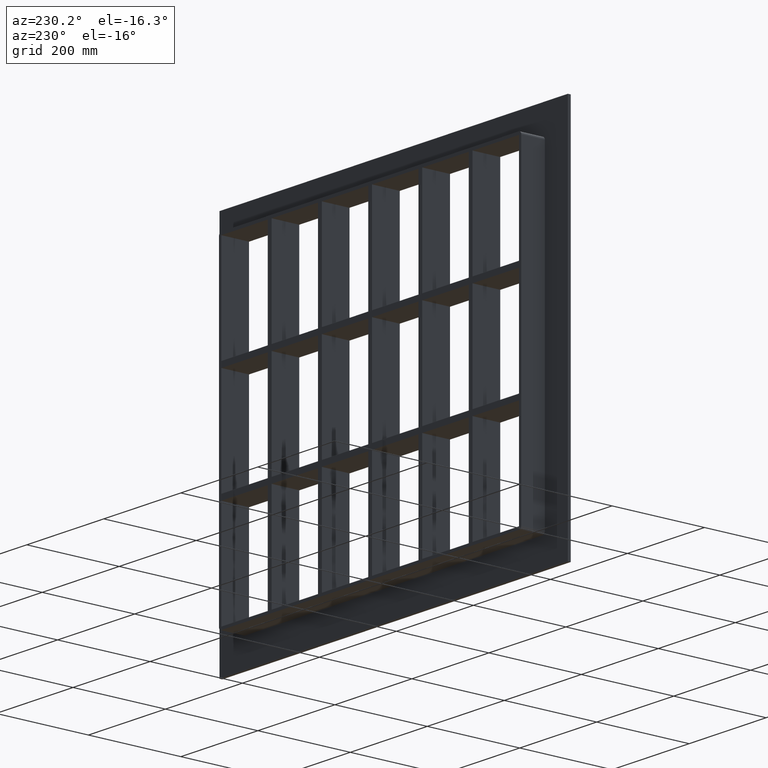
[diagram: clean part render]
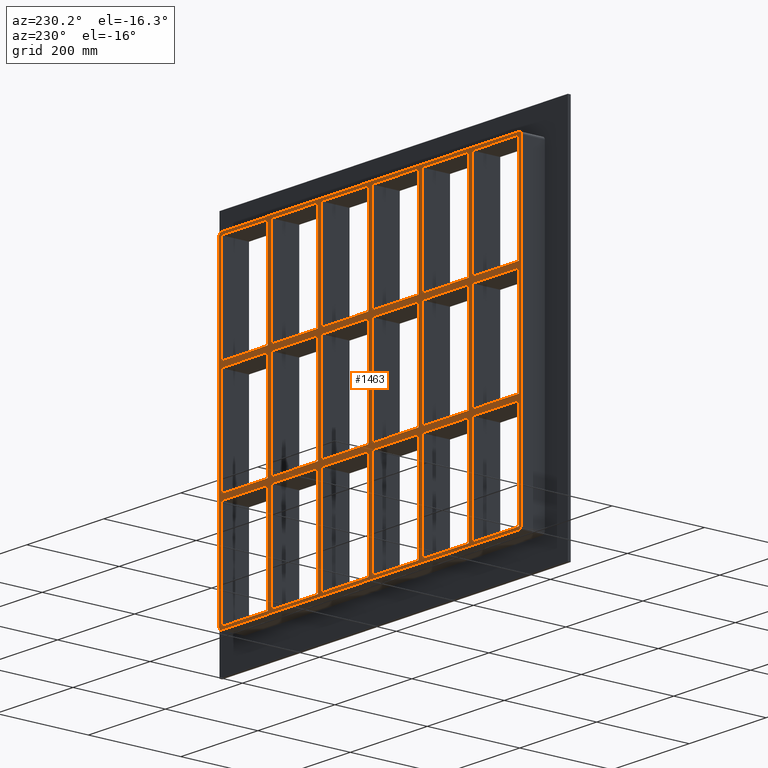
[diagram: same view with one face highlighted and labeled with its STEP entity id]
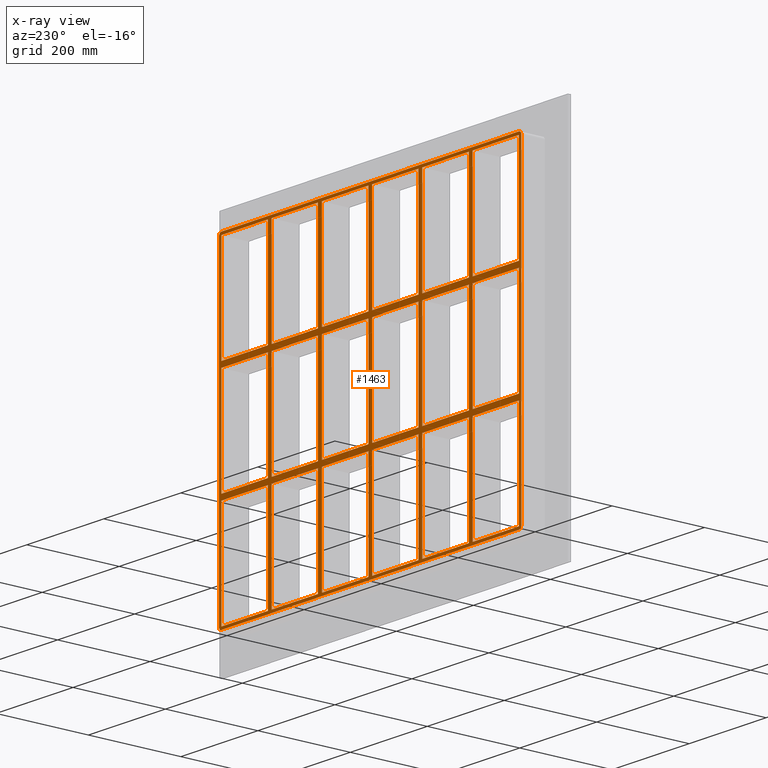
[diagram: x-ray of the same camera — body ghosted, the highlighted face saturated]
A machine part, auxiliary view. The second image highlights one B-rep face of the part: STEP entity #1463.
The next image is the same camera in x-ray: the body ghosted, the highlighted face saturated — about 0% of this face is hidden behind the body in this view.
In plain terms, the highlighted planar face has unit normal (0, 1, 0).
Its self-contained STEP definition (entity closure, byte-faithful):
#75=CARTESIAN_POINT('',(-266.00000000000142,57.0,108.99999999999068));
#76=VERTEX_POINT('',#75);
#91=CARTESIAN_POINT('',(-386.49999999999972,57.0,108.99999999999068));
#92=VERTEX_POINT('',#91);
#99=CARTESIAN_POINT('',(-266.00000000000136,57.0,108.99999999999068));
#100=DIRECTION('',(-1.0,0.0,0.0));
#101=VECTOR('',#100,120.49999999999841);
#102=LINE('',#99,#101);
#103=EDGE_CURVE('',#76,#92,#102,.T.);
#115=CARTESIAN_POINT('',(-135.50000000000148,57.0,108.99999999999068));
#116=VERTEX_POINT('',#115);
#131=CARTESIAN_POINT('',(-256.00000000000364,57.0,108.99999999999068));
#132=VERTEX_POINT('',#131);
#139=CARTESIAN_POINT('',(-135.50000000000148,57.0,108.99999999999068));
#140=DIRECTION('',(-1.0,0.0,0.0));
#141=VECTOR('',#140,120.50000000000216);
#142=LINE('',#139,#141);
#143=EDGE_CURVE('',#116,#132,#142,.T.);
#155=CARTESIAN_POINT('',(-5.000000000001421,57.0,108.99999999999068));
#156=VERTEX_POINT('',#155);
#171=CARTESIAN_POINT('',(-125.50000000000367,57.0,108.99999999999068));
#172=VERTEX_POINT('',#171);
#179=CARTESIAN_POINT('',(-5.000000000001421,57.0,108.99999999999068));
#180=DIRECTION('',(-1.0,0.0,0.0));
#181=VECTOR('',#180,120.50000000000222);
#182=LINE('',#179,#181);
#183=EDGE_CURVE('',#156,#172,#182,.T.);
#195=CARTESIAN_POINT('',(125.49999999999866,57.0,108.99999999999069));
#196=VERTEX_POINT('',#195);
#211=CARTESIAN_POINT('',(4.999999999996376,57.0,108.99999999999069));
#212=VERTEX_POINT('',#211);
#219=CARTESIAN_POINT('',(125.49999999999864,57.0,108.99999999999069));
#220=DIRECTION('',(-1.0,0.0,0.0));
#221=VECTOR('',#220,120.50000000000227);
#222=LINE('',#219,#221);
#223=EDGE_CURVE('',#196,#212,#222,.T.);
#233=CARTESIAN_POINT('',(265.99999999999642,57.0,108.99999999999069));
#234=VERTEX_POINT('',#233);
#243=CARTESIAN_POINT('',(386.49999999999636,57.0,108.99999999999069));
#244=VERTEX_POINT('',#243);
#245=CARTESIAN_POINT('',(386.49999999999636,57.0,108.99999999999069));
#246=DIRECTION('',(-1.0,0.0,0.0));
#247=VECTOR('',#246,120.49999999999994);
#248=LINE('',#245,#247);
#249=EDGE_CURVE('',#244,#234,#248,.T.);
#275=CARTESIAN_POINT('',(255.99999999999866,57.0,108.99999999999069));
#276=VERTEX_POINT('',#275);
#291=CARTESIAN_POINT('',(135.49999999999642,57.0,108.99999999999069));
#292=VERTEX_POINT('',#291);
#299=CARTESIAN_POINT('',(255.99999999999866,57.0,108.99999999999069));
#300=DIRECTION('',(-1.0,0.0,0.0));
#301=VECTOR('',#300,120.50000000000225);
#302=LINE('',#299,#301);
#303=EDGE_CURVE('',#276,#292,#302,.T.);
#313=CARTESIAN_POINT('',(-266.00000000000142,57.0,120.99999999999994));
#314=VERTEX_POINT('',#313);
#323=CARTESIAN_POINT('',(-386.49999999999977,57.0,120.99999999999994));
#324=VERTEX_POINT('',#323);
#325=CARTESIAN_POINT('',(-386.49999999999977,57.0,120.99999999999994));
#326=DIRECTION('',(1.0,0.0,0.0));
#327=VECTOR('',#326,120.49999999999841);
#328=LINE('',#325,#327);
#329=EDGE_CURVE('',#324,#314,#328,.T.);
#355=CARTESIAN_POINT('',(265.99999999999636,57.0,120.99999999999994));
#356=VERTEX_POINT('',#355);
#371=CARTESIAN_POINT('',(386.50000000000006,57.0,120.99999999999994));
#372=VERTEX_POINT('',#371);
#379=CARTESIAN_POINT('',(265.99999999999636,57.0,120.99999999999994));
#380=DIRECTION('',(1.0,0.0,0.0));
#381=VECTOR('',#380,120.50000000000364);
#382=LINE('',#379,#381);
#383=EDGE_CURVE('',#356,#372,#382,.T.);
#393=CARTESIAN_POINT('',(-135.50000000000139,57.0,120.99999999999994));
#394=VERTEX_POINT('',#393);
#403=CARTESIAN_POINT('',(-256.00000000000364,57.0,120.99999999999994));
#404=VERTEX_POINT('',#403);
#405=CARTESIAN_POINT('',(-256.00000000000364,57.0,120.99999999999994));
#406=DIRECTION('',(1.0,0.0,0.0));
#407=VECTOR('',#406,120.50000000000225);
#408=LINE('',#405,#407);
#409=EDGE_CURVE('',#404,#394,#408,.T.);
#433=CARTESIAN_POINT('',(-5.000000000001421,57.0,120.99999999999994));
#434=VERTEX_POINT('',#433);
#443=CARTESIAN_POINT('',(-125.50000000000364,57.0,120.99999999999994));
#444=VERTEX_POINT('',#443);
#445=CARTESIAN_POINT('',(-125.50000000000364,57.0,120.99999999999994));
#446=DIRECTION('',(1.0,0.0,0.0));
#447=VECTOR('',#446,120.50000000000222);
#448=LINE('',#445,#447);
#449=EDGE_CURVE('',#444,#434,#448,.T.);
#473=CARTESIAN_POINT('',(125.49999999999862,57.0,120.99999999999994));
#474=VERTEX_POINT('',#473);
#483=CARTESIAN_POINT('',(4.999999999996376,57.0,120.99999999999994));
#484=VERTEX_POINT('',#483);
#485=CARTESIAN_POINT('',(4.999999999996362,57.0,120.99999999999994));
#486=DIRECTION('',(1.0,0.0,0.0));
#487=VECTOR('',#486,120.50000000000227);
#488=LINE('',#485,#487);
#489=EDGE_CURVE('',#484,#474,#488,.T.);
#513=CARTESIAN_POINT('',(255.99999999999866,57.0,120.99999999999994));
#514=VERTEX_POINT('',#513);
#523=CARTESIAN_POINT('',(135.49999999999642,57.0,120.99999999999994));
#524=VERTEX_POINT('',#523);
#525=CARTESIAN_POINT('',(135.49999999999636,57.0,120.99999999999994));
#526=DIRECTION('',(1.0,0.0,0.0));
#527=VECTOR('',#526,120.50000000000227);
#528=LINE('',#525,#527);
#529=EDGE_CURVE('',#524,#514,#528,.T.);
#554=CARTESIAN_POINT('',(-386.50000000000006,57.0,339.00000000000006));
#555=VERTEX_POINT('',#554);
#556=CARTESIAN_POINT('',(-386.50000000000006,57.0,339.00000000000011));
#557=DIRECTION('',(0.0,0.0,-1.0));
#558=VECTOR('',#557,218.00000000000014);
#559=LINE('',#556,#558);
#560=EDGE_CURVE('',#555,#324,#559,.T.);
#585=CARTESIAN_POINT('',(386.50000000000006,57.0,-109.00000000000006));
#586=VERTEX_POINT('',#585);
#587=CARTESIAN_POINT('',(386.50000000000006,57.0,-109.00000000000009));
#588=DIRECTION('',(0.0,0.0,1.0));
#589=VECTOR('',#588,217.99999999999079);
#590=LINE('',#587,#589);
#591=EDGE_CURVE('',#586,#244,#590,.T.);
#624=CARTESIAN_POINT('',(386.50000000000006,57.0,339.00000000000006));
#625=VERTEX_POINT('',#624);
#632=CARTESIAN_POINT('',(386.50000000000006,57.0,120.99999999999994));
#633=DIRECTION('',(0.0,0.0,1.0));
#634=VECTOR('',#633,218.00000000000011);
#635=LINE('',#632,#634);
#636=EDGE_CURVE('',#372,#625,#635,.T.);
#655=CARTESIAN_POINT('',(255.99999999999864,57.0,339.00000000000006));
#656=VERTEX_POINT('',#655);
#663=CARTESIAN_POINT('',(255.99999999999864,57.0,120.99999999999994));
#664=DIRECTION('',(0.0,0.0,1.0));
#665=VECTOR('',#664,218.00000000000011);
#666=LINE('',#663,#665);
#667=EDGE_CURVE('',#514,#656,#666,.T.);
#678=CARTESIAN_POINT('',(265.99999999999642,57.0,339.00000000000006));
#679=VERTEX_POINT('',#678);
#680=CARTESIAN_POINT('',(265.99999999999642,57.0,339.00000000000006));
#681=DIRECTION('',(0.0,0.0,-1.0));
#682=VECTOR('',#681,218.00000000000011);
#683=LINE('',#680,#682);
#684=EDGE_CURVE('',#679,#356,#683,.T.);
#717=CARTESIAN_POINT('',(125.49999999999862,57.0,339.00000000000006));
#718=VERTEX_POINT('',#717);
#725=CARTESIAN_POINT('',(125.49999999999865,57.0,120.99999999999994));
#726=DIRECTION('',(0.0,0.0,1.0));
#727=VECTOR('',#726,218.00000000000011);
#728=LINE('',#725,#727);
#729=EDGE_CURVE('',#474,#718,#728,.T.);
#740=CARTESIAN_POINT('',(135.49999999999642,57.0,339.00000000000006));
#741=VERTEX_POINT('',#740);
#742=CARTESIAN_POINT('',(135.49999999999642,57.0,339.00000000000006));
#743=DIRECTION('',(0.0,0.0,-1.0));
#744=VECTOR('',#743,218.00000000000011);
#745=LINE('',#742,#744);
#746=EDGE_CURVE('',#741,#524,#745,.T.);
#779=CARTESIAN_POINT('',(-5.000000000001421,57.0,339.00000000000006));
#780=VERTEX_POINT('',#779);
#787=CARTESIAN_POINT('',(-5.000000000001398,57.0,120.99999999999994));
#788=DIRECTION('',(0.0,0.0,1.0));
#789=VECTOR('',#788,218.00000000000011);
#790=LINE('',#787,#789);
#791=EDGE_CURVE('',#434,#780,#790,.T.);
#802=CARTESIAN_POINT('',(4.999999999996376,57.0,339.00000000000006));
#803=VERTEX_POINT('',#802);
#804=CARTESIAN_POINT('',(4.999999999996376,57.0,339.00000000000006));
#805=DIRECTION('',(0.0,0.0,-1.0));
#806=VECTOR('',#805,218.00000000000011);
#807=LINE('',#804,#806);
#808=EDGE_CURVE('',#803,#484,#807,.T.);
#841=CARTESIAN_POINT('',(-135.50000000000142,57.0,339.00000000000006));
#842=VERTEX_POINT('',#841);
#849=CARTESIAN_POINT('',(-135.50000000000142,57.0,120.99999999999994));
#850=DIRECTION('',(0.0,0.0,1.0));
#851=VECTOR('',#850,218.00000000000011);
#852=LINE('',#849,#851);
#853=EDGE_CURVE('',#394,#842,#852,.T.);
#864=CARTESIAN_POINT('',(-125.50000000000364,57.0,339.00000000000006));
#865=VERTEX_POINT('',#864);
#866=CARTESIAN_POINT('',(-125.50000000000364,57.0,339.00000000000006));
#867=DIRECTION('',(0.0,0.0,-1.0));
#868=VECTOR('',#867,218.00000000000011);
#869=LINE('',#866,#868);
#870=EDGE_CURVE('',#865,#444,#869,.T.);
#903=CARTESIAN_POINT('',(-266.00000000000142,57.0,339.00000000000006));
#904=VERTEX_POINT('',#903);
#911=CARTESIAN_POINT('',(-266.00000000000142,57.0,120.99999999999994));
#912=DIRECTION('',(0.0,0.0,1.0));
#913=VECTOR('',#912,218.00000000000011);
#914=LINE('',#911,#913);
#915=EDGE_CURVE('',#314,#904,#914,.T.);
#926=CARTESIAN_POINT('',(-266.00000000000136,57.0,-109.00000000000006));
#927=VERTEX_POINT('',#926);
#928=CARTESIAN_POINT('',(-266.00000000000136,57.0,-109.00000000000006));
#929=DIRECTION('',(0.0,0.0,1.0));
#930=VECTOR('',#929,217.99999999999073);
#931=LINE('',#928,#930);
#932=EDGE_CURVE('',#927,#76,#931,.T.);
#957=CARTESIAN_POINT('',(-256.00000000000364,57.0,339.00000000000006));
#958=VERTEX_POINT('',#957);
#959=CARTESIAN_POINT('',(-256.00000000000364,57.0,339.00000000000006));
#960=DIRECTION('',(0.0,0.0,-1.0));
#961=VECTOR('',#960,218.00000000000011);
#962=LINE('',#959,#961);
#963=EDGE_CURVE('',#958,#404,#962,.T.);
#982=CARTESIAN_POINT('',(3.257658E-014,57.0,0.0));
#983=DIRECTION('',(0.0,1.0,0.0));
#984=DIRECTION('',(0.0,0.0,1.0));
#985=AXIS2_PLACEMENT_3D('',#982,#983,#984);
#986=PLANE('',#985);
#987=CARTESIAN_POINT('',(386.50000000000023,57.0,-345.00000000000006));
#988=VERTEX_POINT('',#987);
#989=CARTESIAN_POINT('',(392.50000000000011,57.0,-339.0));
#990=VERTEX_POINT('',#989);
#991=CARTESIAN_POINT('',(386.50000000000023,57.0,-339.00000000000006));
#992=DIRECTION('',(0.0,-1.0,0.0));
#993=DIRECTION('',(0.707106781186548,0.0,-0.707106781186548));
#994=AXIS2_PLACEMENT_3D('',#991,#992,#993);
#995=CIRCLE('',#994,6.000000000000002);
#996=EDGE_CURVE('',#988,#990,#995,.T.);
#997=ORIENTED_EDGE('',*,*,#996,.F.);
#998=CARTESIAN_POINT('',(-386.50000000000011,57.0,-345.00000000000006));
#999=VERTEX_POINT('',#998);
#1000=CARTESIAN_POINT('',(386.50000000000023,57.0,-345.00000000000006));
#1001=DIRECTION('',(-1.0,0.0,0.0));
#1002=VECTOR('',#1001,773.00000000000034);
#1003=LINE('',#1000,#1002);
#1004=EDGE_CURVE('',#988,#999,#1003,.T.);
#1005=ORIENTED_EDGE('',*,*,#1004,.T.);
#1006=CARTESIAN_POINT('',(-392.50000000000006,57.0,-339.00000000000006));
#1007=VERTEX_POINT('',#1006);
#1008=CARTESIAN_POINT('',(-386.50000000000006,57.0,-339.00000000000006));
#1009=DIRECTION('',(0.0,-1.0,0.0));
#1010=DIRECTION('',(-0.707106781186548,0.0,-0.707106781186548));
#1011=AXIS2_PLACEMENT_3D('',#1008,#1009,#1010);
#1012=CIRCLE('',#1011,6.000000000000002);
#1013=EDGE_CURVE('',#1007,#999,#1012,.T.);
#1014=ORIENTED_EDGE('',*,*,#1013,.F.);
#1015=CARTESIAN_POINT('',(-392.50000000000006,57.0,339.0));
#1016=VERTEX_POINT('',#1015);
#1017=CARTESIAN_POINT('',(-392.50000000000006,57.0,-339.00000000000006));
#1018=DIRECTION('',(0.0,0.0,1.0));
#1019=VECTOR('',#1018,678.0);
#1020=LINE('',#1017,#1019);
#1021=EDGE_CURVE('',#1007,#1016,#1020,.T.);
#1022=ORIENTED_EDGE('',*,*,#1021,.T.);
#1023=CARTESIAN_POINT('',(-386.50000000000006,57.0,345.00000000000006));
#1024=VERTEX_POINT('',#1023);
#1025=CARTESIAN_POINT('',(-386.50000000000006,57.0,339.00000000000006));
#1026=DIRECTION('',(0.0,-1.0,0.0));
#1027=DIRECTION('',(-0.707106781186548,0.0,0.707106781186548));
#1028=AXIS2_PLACEMENT_3D('',#1025,#1026,#1027);
#1029=CIRCLE('',#1028,6.000000000000002);
#1030=EDGE_CURVE('',#1024,#1016,#1029,.T.);
#1031=ORIENTED_EDGE('',*,*,#1030,.F.);
#1032=CARTESIAN_POINT('',(386.50000000000023,57.0,345.00000000000006));
#1033=VERTEX_POINT('',#1032);
#1034=CARTESIAN_POINT('',(-386.5,57.0,345.00000000000006));
#1035=DIRECTION('',(1.0,0.0,0.0));
#1036=VECTOR('',#1035,773.00000000000023);
#1037=LINE('',#1034,#1036);
#1038=EDGE_CURVE('',#1024,#1033,#1037,.T.);
#1039=ORIENTED_EDGE('',*,*,#1038,.T.);
#1040=CARTESIAN_POINT('',(392.50000000000011,57.0,339.00000000000006));
#1041=VERTEX_POINT('',#1040);
#1042=CARTESIAN_POINT('',(386.50000000000011,57.0,339.00000000000006));
#1043=DIRECTION('',(0.0,-1.0,0.0));
#1044=DIRECTION('',(0.707106781186556,0.0,0.707106781186539));
#1045=AXIS2_PLACEMENT_3D('',#1042,#1043,#1044);
#1046=CIRCLE('',#1045,6.000000000000001);
#1047=EDGE_CURVE('',#1041,#1033,#1046,.T.);
#1048=ORIENTED_EDGE('',*,*,#1047,.F.);
#1049=CARTESIAN_POINT('',(392.50000000000011,57.0,339.00000000000006));
#1050=DIRECTION('',(0.0,0.0,-1.0));
#1051=VECTOR('',#1050,678.0);
#1052=LINE('',#1049,#1051);
#1053=EDGE_CURVE('',#1041,#990,#1052,.T.);
#1054=ORIENTED_EDGE('',*,*,#1053,.T.);
#1055=EDGE_LOOP('',(#997,#1005,#1014,#1022,#1031,#1039,#1048,#1054));
#1056=FACE_OUTER_BOUND('',#1055,.T.);
#1057=CARTESIAN_POINT('',(-386.49999999999977,57.0,-109.00000000000006));
#1058=VERTEX_POINT('',#1057);
#1059=CARTESIAN_POINT('',(-386.50000000000006,57.0,108.99999999999065));
#1060=DIRECTION('',(0.0,0.0,-1.0));
#1061=VECTOR('',#1060,217.99999999999071);
#1062=LINE('',#1059,#1061);
#1063=EDGE_CURVE('',#92,#1058,#1062,.T.);
#1064=ORIENTED_EDGE('',*,*,#1063,.T.);
#1065=CARTESIAN_POINT('',(-386.49999999999977,57.0,-109.00000000000006));
#1066=DIRECTION('',(1.0,0.0,0.0));
#1067=VECTOR('',#1066,120.49999999999841);
#1068=LINE('',#1065,#1067);
#1069=EDGE_CURVE('',#1058,#927,#1068,.T.);
#1070=ORIENTED_EDGE('',*,*,#1069,.T.);
#1071=ORIENTED_EDGE('',*,*,#932,.T.);
#1072=ORIENTED_EDGE('',*,*,#103,.T.);
#1073=EDGE_LOOP('',(#1064,#1070,#1071,#1072));
#1074=FACE_BOUND('',#1073,.T.);
#1075=ORIENTED_EDGE('',*,*,#636,.T.);
#1076=CARTESIAN_POINT('',(386.50000000000011,57.0,339.00000000000006));
#1077=DIRECTION('',(-1.0,0.0,0.0));
#1078=VECTOR('',#1077,120.50000000000375);
#1079=LINE('',#1076,#1078);
#1080=EDGE_CURVE('',#625,#679,#1079,.T.);
#1081=ORIENTED_EDGE('',*,*,#1080,.T.);
#1082=ORIENTED_EDGE('',*,*,#684,.T.);
#1083=ORIENTED_EDGE('',*,*,#383,.T.);
#1084=EDGE_LOOP('',(#1075,#1081,#1082,#1083));
#1085=FACE_BOUND('',#1084,.T.);
#1086=ORIENTED_EDGE('',*,*,#667,.T.);
#1087=CARTESIAN_POINT('',(255.99999999999866,57.0,339.00000000000006));
#1088=DIRECTION('',(-1.0,0.0,0.0));
#1089=VECTOR('',#1088,120.50000000000222);
#1090=LINE('',#1087,#1089);
#1091=EDGE_CURVE('',#656,#741,#1090,.T.);
#1092=ORIENTED_EDGE('',*,*,#1091,.T.);
#1093=ORIENTED_EDGE('',*,*,#746,.T.);
#1094=ORIENTED_EDGE('',*,*,#529,.T.);
#1095=EDGE_LOOP('',(#1086,#1092,#1093,#1094));
#1096=FACE_BOUND('',#1095,.T.);
#1097=ORIENTED_EDGE('',*,*,#729,.T.);
#1098=CARTESIAN_POINT('',(125.49999999999861,57.0,339.00000000000006));
#1099=DIRECTION('',(-1.0,0.0,0.0));
#1100=VECTOR('',#1099,120.50000000000222);
#1101=LINE('',#1098,#1100);
#1102=EDGE_CURVE('',#718,#803,#1101,.T.);
#1103=ORIENTED_EDGE('',*,*,#1102,.T.);
#1104=ORIENTED_EDGE('',*,*,#808,.T.);
#1105=ORIENTED_EDGE('',*,*,#489,.T.);
#1106=EDGE_LOOP('',(#1097,#1103,#1104,#1105));
#1107=FACE_BOUND('',#1106,.T.);
#1108=ORIENTED_EDGE('',*,*,#791,.T.);
#1109=CARTESIAN_POINT('',(-5.000000000001421,57.0,339.00000000000006));
#1110=DIRECTION('',(-1.0,0.0,0.0));
#1111=VECTOR('',#1110,120.50000000000222);
#1112=LINE('',#1109,#1111);
#1113=EDGE_CURVE('',#780,#865,#1112,.T.);
#1114=ORIENTED_EDGE('',*,*,#1113,.T.);
#1115=ORIENTED_EDGE('',*,*,#870,.T.);
#1116=ORIENTED_EDGE('',*,*,#449,.T.);
#1117=EDGE_LOOP('',(#1108,#1114,#1115,#1116));
#1118=FACE_BOUND('',#1117,.T.);
#1119=ORIENTED_EDGE('',*,*,#853,.T.);
#1120=CARTESIAN_POINT('',(-135.50000000000142,57.0,339.00000000000006));
#1121=DIRECTION('',(-1.0,0.0,0.0));
#1122=VECTOR('',#1121,120.50000000000222);
#1123=LINE('',#1120,#1122);
#1124=EDGE_CURVE('',#842,#958,#1123,.T.);
#1125=ORIENTED_EDGE('',*,*,#1124,.T.);
#1126=ORIENTED_EDGE('',*,*,#963,.T.);
#1127=ORIENTED_EDGE('',*,*,#409,.T.);
#1128=EDGE_LOOP('',(#1119,#1125,#1126,#1127));
#1129=FACE_BOUND('',#1128,.T.);
#1130=ORIENTED_EDGE('',*,*,#249,.T.);
#1131=CARTESIAN_POINT('',(265.99999999999642,57.0,-109.00000000000006));
#1132=VERTEX_POINT('',#1131);
#1133=CARTESIAN_POINT('',(265.99999999999642,57.0,108.99999999999068));
#1134=DIRECTION('',(0.0,0.0,-1.0));
#1135=VECTOR('',#1134,217.99999999999073);
#1136=LINE('',#1133,#1135);
#1137=EDGE_CURVE('',#234,#1132,#1136,.T.);
#1138=ORIENTED_EDGE('',*,*,#1137,.T.);
#1139=CARTESIAN_POINT('',(265.99999999999636,57.0,-109.00000000000006));
#1140=DIRECTION('',(1.0,0.0,0.0));
#1141=VECTOR('',#1140,120.50000000000364);
#1142=LINE('',#1139,#1141);
#1143=EDGE_CURVE('',#1132,#586,#1142,.T.);
#1144=ORIENTED_EDGE('',*,*,#1143,.T.);
#1145=ORIENTED_EDGE('',*,*,#591,.T.);
#1146=EDGE_LOOP('',(#1130,#1138,#1144,#1145));
#1147=FACE_BOUND('',#1146,.T.);
#1148=ORIENTED_EDGE('',*,*,#303,.T.);
#1149=CARTESIAN_POINT('',(135.49999999999642,57.0,-109.00000000000006));
#1150=VERTEX_POINT('',#1149);
#1151=CARTESIAN_POINT('',(135.49999999999642,57.0,108.99999999999068));
#1152=DIRECTION('',(0.0,0.0,-1.0));
#1153=VECTOR('',#1152,217.99999999999073);
#1154=LINE('',#1151,#1153);
#1155=EDGE_CURVE('',#292,#1150,#1154,.T.);
#1156=ORIENTED_EDGE('',*,*,#1155,.T.);
#1157=CARTESIAN_POINT('',(255.99999999999866,57.0,-109.00000000000006));
#1158=VERTEX_POINT('',#1157);
#1159=CARTESIAN_POINT('',(135.49999999999636,57.0,-109.00000000000006));
#1160=DIRECTION('',(1.0,0.0,0.0));
#1161=VECTOR('',#1160,120.50000000000227);
#1162=LINE('',#1159,#1161);
#1163=EDGE_CURVE('',#1150,#1158,#1162,.T.);
#1164=ORIENTED_EDGE('',*,*,#1163,.T.);
#1165=CARTESIAN_POINT('',(255.99999999999866,57.0,-109.00000000000006));
#1166=DIRECTION('',(0.0,0.0,1.0));
#1167=VECTOR('',#1166,217.99999999999073);
#1168=LINE('',#1165,#1167);
#1169=EDGE_CURVE('',#1158,#276,#1168,.T.);
#1170=ORIENTED_EDGE('',*,*,#1169,.T.);
#1171=EDGE_LOOP('',(#1148,#1156,#1164,#1170));
#1172=FACE_BOUND('',#1171,.T.);
#1173=ORIENTED_EDGE('',*,*,#223,.T.);
#1174=CARTESIAN_POINT('',(4.999999999996376,57.0,-109.00000000000006));
#1175=VERTEX_POINT('',#1174);
#1176=CARTESIAN_POINT('',(4.999999999996376,57.0,108.99999999999068));
#1177=DIRECTION('',(0.0,0.0,-1.0));
#1178=VECTOR('',#1177,217.99999999999073);
#1179=LINE('',#1176,#1178);
#1180=EDGE_CURVE('',#212,#1175,#1179,.T.);
#1181=ORIENTED_EDGE('',*,*,#1180,.T.);
#1182=CARTESIAN_POINT('',(125.49999999999868,57.0,-109.00000000000006));
#1183=VERTEX_POINT('',#1182);
#1184=CARTESIAN_POINT('',(4.999999999996362,57.0,-109.00000000000006));
#1185=DIRECTION('',(1.0,0.0,0.0));
#1186=VECTOR('',#1185,120.50000000000233);
#1187=LINE('',#1184,#1186);
#1188=EDGE_CURVE('',#1175,#1183,#1187,.T.);
#1189=ORIENTED_EDGE('',*,*,#1188,.T.);
#1190=CARTESIAN_POINT('',(125.49999999999866,57.0,-109.00000000000006));
#1191=DIRECTION('',(0.0,0.0,1.0));
#1192=VECTOR('',#1191,217.99999999999073);
#1193=LINE('',#1190,#1192);
#1194=EDGE_CURVE('',#1183,#196,#1193,.T.);
#1195=ORIENTED_EDGE('',*,*,#1194,.T.);
#1196=EDGE_LOOP('',(#1173,#1181,#1189,#1195));
#1197=FACE_BOUND('',#1196,.T.);
#1198=ORIENTED_EDGE('',*,*,#183,.T.);
#1199=CARTESIAN_POINT('',(-125.50000000000364,57.0,-109.00000000000006));
#1200=VERTEX_POINT('',#1199);
#1201=CARTESIAN_POINT('',(-125.50000000000364,57.0,108.99999999999068));
#1202=DIRECTION('',(0.0,0.0,-1.0));
#1203=VECTOR('',#1202,217.99999999999073);
#1204=LINE('',#1201,#1203);
#1205=EDGE_CURVE('',#172,#1200,#1204,.T.);
#1206=ORIENTED_EDGE('',*,*,#1205,.T.);
#1207=CARTESIAN_POINT('',(-5.000000000001375,57.0,-109.00000000000006));
#1208=VERTEX_POINT('',#1207);
#1209=CARTESIAN_POINT('',(-125.50000000000364,57.0,-109.00000000000006));
#1210=DIRECTION('',(1.0,0.0,0.0));
#1211=VECTOR('',#1210,120.50000000000227);
#1212=LINE('',#1209,#1211);
#1213=EDGE_CURVE('',#1200,#1208,#1212,.T.);
#1214=ORIENTED_EDGE('',*,*,#1213,.T.);
#1215=CARTESIAN_POINT('',(-5.000000000001374,57.0,-109.00000000000006));
#1216=DIRECTION('',(0.0,0.0,1.0));
#1217=VECTOR('',#1216,217.99999999999073);
#1218=LINE('',#1215,#1217);
#1219=EDGE_CURVE('',#1208,#156,#1218,.T.);
#1220=ORIENTED_EDGE('',*,*,#1219,.T.);
#1221=EDGE_LOOP('',(#1198,#1206,#1214,#1220));
#1222=FACE_BOUND('',#1221,.T.);
#1223=ORIENTED_EDGE('',*,*,#143,.T.);
#1224=CARTESIAN_POINT('',(-256.00000000000364,57.0,-109.00000000000006));
#1225=VERTEX_POINT('',#1224);
#1226=CARTESIAN_POINT('',(-256.00000000000364,57.0,108.99999999999068));
#1227=DIRECTION('',(0.0,0.0,-1.0));
#1228=VECTOR('',#1227,217.99999999999073);
#1229=LINE('',#1226,#1228);
#1230=EDGE_CURVE('',#132,#1225,#1229,.T.);
#1231=ORIENTED_EDGE('',*,*,#1230,.T.);
#1232=CARTESIAN_POINT('',(-135.50000000000136,57.0,-109.00000000000006));
#1233=VERTEX_POINT('',#1232);
#1234=CARTESIAN_POINT('',(-256.00000000000364,57.0,-109.00000000000006));
#1235=DIRECTION('',(1.0,0.0,0.0));
#1236=VECTOR('',#1235,120.50000000000225);
#1237=LINE('',#1234,#1236);
#1238=EDGE_CURVE('',#1225,#1233,#1237,.T.);
#1239=ORIENTED_EDGE('',*,*,#1238,.T.);
#1240=CARTESIAN_POINT('',(-135.50000000000139,57.0,-109.00000000000006));
#1241=DIRECTION('',(0.0,0.0,1.0));
#1242=VECTOR('',#1241,217.99999999999073);
#1243=LINE('',#1240,#1242);
#1244=EDGE_CURVE('',#1233,#116,#1243,.T.);
#1245=ORIENTED_EDGE('',*,*,#1244,.T.);
#1246=EDGE_LOOP('',(#1223,#1231,#1239,#1245));
#1247=FACE_BOUND('',#1246,.T.);
#1248=CARTESIAN_POINT('',(-386.49999999999972,57.0,-121.00000000000932));
#1249=VERTEX_POINT('',#1248);
#1250=CARTESIAN_POINT('',(-386.50000000000006,57.0,-339.00000000000006));
#1251=VERTEX_POINT('',#1250);
#1252=CARTESIAN_POINT('',(-386.50000000000006,57.0,-121.00000000000932));
#1253=DIRECTION('',(0.0,0.0,-1.0));
#1254=VECTOR('',#1253,217.99999999999073);
#1255=LINE('',#1252,#1254);
#1256=EDGE_CURVE('',#1249,#1251,#1255,.T.);
#1257=ORIENTED_EDGE('',*,*,#1256,.T.);
#1258=CARTESIAN_POINT('',(-266.00000000000136,57.0,-339.00000000000006));
#1259=VERTEX_POINT('',#1258);
#1260=CARTESIAN_POINT('',(-386.50000000000011,57.0,-339.00000000000006));
#1261=DIRECTION('',(1.0,0.0,0.0));
#1262=VECTOR('',#1261,120.49999999999875);
#1263=LINE('',#1260,#1262);
#1264=EDGE_CURVE('',#1251,#1259,#1263,.T.);
#1265=ORIENTED_EDGE('',*,*,#1264,.T.);
#1266=CARTESIAN_POINT('',(-266.00000000000136,57.0,-121.00000000000932));
#1267=VERTEX_POINT('',#1266);
#1268=CARTESIAN_POINT('',(-266.00000000000136,57.0,-339.00000000000006));
#1269=DIRECTION('',(0.0,0.0,1.0));
#1270=VECTOR('',#1269,217.99999999999073);
#1271=LINE('',#1268,#1270);
#1272=EDGE_CURVE('',#1259,#1267,#1271,.T.);
#1273=ORIENTED_EDGE('',*,*,#1272,.T.);
#1274=CARTESIAN_POINT('',(-266.00000000000136,57.0,-121.00000000000932));
#1275=DIRECTION('',(-1.0,0.0,0.0));
#1276=VECTOR('',#1275,120.49999999999841);
#1277=LINE('',#1274,#1276);
#1278=EDGE_CURVE('',#1267,#1249,#1277,.T.);
#1279=ORIENTED_EDGE('',*,*,#1278,.T.);
#1280=EDGE_LOOP('',(#1257,#1265,#1273,#1279));
#1281=FACE_BOUND('',#1280,.T.);
#1282=CARTESIAN_POINT('',(-135.50000000000136,57.0,-339.00000000000006));
#1283=VERTEX_POINT('',#1282);
#1284=CARTESIAN_POINT('',(-135.50000000000136,57.0,-121.00000000000932));
#1285=VERTEX_POINT('',#1284);
#1286=CARTESIAN_POINT('',(-135.50000000000136,57.0,-339.00000000000006));
#1287=DIRECTION('',(0.0,0.0,1.0));
#1288=VECTOR('',#1287,217.99999999999073);
#1289=LINE('',#1286,#1288);
#1290=EDGE_CURVE('',#1283,#1285,#1289,.T.);
#1291=ORIENTED_EDGE('',*,*,#1290,.T.);
#1292=CARTESIAN_POINT('',(-256.00000000000364,57.0,-121.00000000000932));
#1293=VERTEX_POINT('',#1292);
#1294=CARTESIAN_POINT('',(-135.50000000000136,57.0,-121.00000000000932));
#1295=DIRECTION('',(-1.0,0.0,0.0));
#1296=VECTOR('',#1295,120.50000000000227);
#1297=LINE('',#1294,#1296);
#1298=EDGE_CURVE('',#1285,#1293,#1297,.T.);
#1299=ORIENTED_EDGE('',*,*,#1298,.T.);
#1300=CARTESIAN_POINT('',(-256.00000000000364,57.0,-338.99999999998431));
#1301=VERTEX_POINT('',#1300);
#1302=CARTESIAN_POINT('',(-256.00000000000364,57.0,-121.00000000000932));
#1303=DIRECTION('',(0.0,0.0,-1.0));
#1304=VECTOR('',#1303,217.99999999997493);
#1305=LINE('',#1302,#1304);
#1306=EDGE_CURVE('',#1293,#1301,#1305,.T.);
#1307=ORIENTED_EDGE('',*,*,#1306,.T.);
#1308=CARTESIAN_POINT('',(-256.00000000000364,57.0,-339.00000000000006));
#1309=DIRECTION('',(1.0,0.0,0.0));
#1310=VECTOR('',#1309,120.50000000000225);
#1311=LINE('',#1308,#1310);
#1312=EDGE_CURVE('',#1301,#1283,#1311,.T.);
#1313=ORIENTED_EDGE('',*,*,#1312,.T.);
#1314=EDGE_LOOP('',(#1291,#1299,#1307,#1313));
#1315=FACE_BOUND('',#1314,.T.);
#1316=CARTESIAN_POINT('',(-5.00000000000135,57.0,-339.00000000000006));
#1317=VERTEX_POINT('',#1316);
#1318=CARTESIAN_POINT('',(-5.000000000001373,57.0,-121.00000000000932));
#1319=VERTEX_POINT('',#1318);
#1320=CARTESIAN_POINT('',(-5.00000000000135,57.0,-339.00000000000006));
#1321=DIRECTION('',(0.0,0.0,1.0));
#1322=VECTOR('',#1321,217.99999999999073);
#1323=LINE('',#1320,#1322);
#1324=EDGE_CURVE('',#1317,#1319,#1323,.T.);
#1325=ORIENTED_EDGE('',*,*,#1324,.T.);
#1326=CARTESIAN_POINT('',(-125.50000000000364,57.0,-121.00000000000932));
#1327=VERTEX_POINT('',#1326);
#1328=CARTESIAN_POINT('',(-5.000000000001364,57.0,-121.00000000000932));
#1329=DIRECTION('',(-1.0,0.0,0.0));
#1330=VECTOR('',#1329,120.50000000000227);
#1331=LINE('',#1328,#1330);
#1332=EDGE_CURVE('',#1319,#1327,#1331,.T.);
#1333=ORIENTED_EDGE('',*,*,#1332,.T.);
#1334=CARTESIAN_POINT('',(-125.50000000000364,57.0,-338.99999999998431));
#1335=VERTEX_POINT('',#1334);
#1336=CARTESIAN_POINT('',(-125.50000000000364,57.0,-121.00000000000932));
#1337=DIRECTION('',(0.0,0.0,-1.0));
#1338=VECTOR('',#1337,217.99999999997493);
#1339=LINE('',#1336,#1338);
#1340=EDGE_CURVE('',#1327,#1335,#1339,.T.);
#1341=ORIENTED_EDGE('',*,*,#1340,.T.);
#1342=CARTESIAN_POINT('',(-125.50000000000361,57.0,-339.00000000000006));
#1343=DIRECTION('',(1.0,0.0,0.0));
#1344=VECTOR('',#1343,120.50000000000227);
#1345=LINE('',#1342,#1344);
#1346=EDGE_CURVE('',#1335,#1317,#1345,.T.);
#1347=ORIENTED_EDGE('',*,*,#1346,.T.);
#1348=EDGE_LOOP('',(#1325,#1333,#1341,#1347));
#1349=FACE_BOUND('',#1348,.T.);
#1350=CARTESIAN_POINT('',(125.49999999999869,57.0,-339.00000000000006));
#1351=VERTEX_POINT('',#1350);
#1352=CARTESIAN_POINT('',(125.49999999999868,57.0,-121.00000000000932));
#1353=VERTEX_POINT('',#1352);
#1354=CARTESIAN_POINT('',(125.49999999999869,57.0,-339.00000000000006));
#1355=DIRECTION('',(0.0,0.0,1.0));
#1356=VECTOR('',#1355,217.99999999999073);
#1357=LINE('',#1354,#1356);
#1358=EDGE_CURVE('',#1351,#1353,#1357,.T.);
#1359=ORIENTED_EDGE('',*,*,#1358,.T.);
#1360=CARTESIAN_POINT('',(4.999999999996376,57.0,-121.00000000000932));
#1361=VERTEX_POINT('',#1360);
#1362=CARTESIAN_POINT('',(125.49999999999869,57.0,-121.00000000000931));
#1363=DIRECTION('',(-1.0,0.0,0.0));
#1364=VECTOR('',#1363,120.50000000000233);
#1365=LINE('',#1362,#1364);
#1366=EDGE_CURVE('',#1353,#1361,#1365,.T.);
#1367=ORIENTED_EDGE('',*,*,#1366,.T.);
#1368=CARTESIAN_POINT('',(4.999999999996376,57.0,-338.99999999998431));
#1369=VERTEX_POINT('',#1368);
#1370=CARTESIAN_POINT('',(4.999999999996376,57.0,-121.00000000000932));
#1371=DIRECTION('',(0.0,0.0,-1.0));
#1372=VECTOR('',#1371,217.99999999997493);
#1373=LINE('',#1370,#1372);
#1374=EDGE_CURVE('',#1361,#1369,#1373,.T.);
#1375=ORIENTED_EDGE('',*,*,#1374,.T.);
#1376=CARTESIAN_POINT('',(4.99999999999639,57.0,-339.00000000000006));
#1377=DIRECTION('',(1.0,0.0,0.0));
#1378=VECTOR('',#1377,120.5000000000023);
#1379=LINE('',#1376,#1378);
#1380=EDGE_CURVE('',#1369,#1351,#1379,.T.);
#1381=ORIENTED_EDGE('',*,*,#1380,.T.);
#1382=EDGE_LOOP('',(#1359,#1367,#1375,#1381));
#1383=FACE_BOUND('',#1382,.T.);
#1384=CARTESIAN_POINT('',(255.99999999999869,57.0,-339.00000000000006));
#1385=VERTEX_POINT('',#1384);
#1386=CARTESIAN_POINT('',(255.99999999999866,57.0,-121.00000000000932));
#1387=VERTEX_POINT('',#1386);
#1388=CARTESIAN_POINT('',(255.99999999999869,57.0,-339.00000000000006));
#1389=DIRECTION('',(0.0,0.0,1.0));
#1390=VECTOR('',#1389,217.99999999999073);
#1391=LINE('',#1388,#1390);
#1392=EDGE_CURVE('',#1385,#1387,#1391,.T.);
#1393=ORIENTED_EDGE('',*,*,#1392,.T.);
#1394=CARTESIAN_POINT('',(135.49999999999642,57.0,-121.00000000000932));
#1395=VERTEX_POINT('',#1394);
#1396=CARTESIAN_POINT('',(255.99999999999866,57.0,-121.00000000000931));
#1397=DIRECTION('',(-1.0,0.0,0.0));
#1398=VECTOR('',#1397,120.50000000000225);
#1399=LINE('',#1396,#1398);
#1400=EDGE_CURVE('',#1387,#1395,#1399,.T.);
#1401=ORIENTED_EDGE('',*,*,#1400,.T.);
#1402=CARTESIAN_POINT('',(135.49999999999642,57.0,-338.99999999998431));
#1403=VERTEX_POINT('',#1402);
#1404=CARTESIAN_POINT('',(135.49999999999642,57.0,-121.00000000000932));
#1405=DIRECTION('',(0.0,0.0,-1.0));
#1406=VECTOR('',#1405,217.99999999997493);
#1407=LINE('',#1404,#1406);
#1408=EDGE_CURVE('',#1395,#1403,#1407,.T.);
#1409=ORIENTED_EDGE('',*,*,#1408,.T.);
#1410=CARTESIAN_POINT('',(135.49999999999642,57.0,-339.00000000000006));
#1411=DIRECTION('',(1.0,0.0,0.0));
#1412=VECTOR('',#1411,120.50000000000227);
#1413=LINE('',#1410,#1412);
#1414=EDGE_CURVE('',#1403,#1385,#1413,.T.);
#1415=ORIENTED_EDGE('',*,*,#1414,.T.);
#1416=EDGE_LOOP('',(#1393,#1401,#1409,#1415));
#1417=FACE_BOUND('',#1416,.T.);
#1418=ORIENTED_EDGE('',*,*,#329,.T.);
#1419=ORIENTED_EDGE('',*,*,#915,.T.);
#1420=CARTESIAN_POINT('',(-266.00000000000142,57.0,339.00000000000006));
#1421=DIRECTION('',(-1.0,0.0,0.0));
#1422=VECTOR('',#1421,120.49999999999864);
#1423=LINE('',#1420,#1422);
#1424=EDGE_CURVE('',#904,#555,#1423,.T.);
#1425=ORIENTED_EDGE('',*,*,#1424,.T.);
#1426=ORIENTED_EDGE('',*,*,#560,.T.);
#1427=EDGE_LOOP('',(#1418,#1419,#1425,#1426));
#1428=FACE_BOUND('',#1427,.T.);
#1429=CARTESIAN_POINT('',(265.99999999999642,57.0,-338.99999999998431));
#1430=VERTEX_POINT('',#1429);
#1431=CARTESIAN_POINT('',(386.50000000000006,57.0,-339.00000000000006));
#1432=VERTEX_POINT('',#1431);
#1433=CARTESIAN_POINT('',(265.99999999999642,57.0,-339.00000000000006));
#1434=DIRECTION('',(1.0,0.0,0.0));
#1435=VECTOR('',#1434,120.50000000000364);
#1436=LINE('',#1433,#1435);
#1437=EDGE_CURVE('',#1430,#1432,#1436,.T.);
#1438=ORIENTED_EDGE('',*,*,#1437,.T.);
#1439=CARTESIAN_POINT('',(386.49999999999636,57.0,-121.00000000000931));
#1440=VERTEX_POINT('',#1439);
#1441=CARTESIAN_POINT('',(386.50000000000006,57.0,-339.00000000000011));
#1442=DIRECTION('',(0.0,0.0,1.0));
#1443=VECTOR('',#1442,217.99999999999082);
#1444=LINE('',#1441,#1443);
#1445=EDGE_CURVE('',#1432,#1440,#1444,.T.);
#1446=ORIENTED_EDGE('',*,*,#1445,.T.);
#1447=CARTESIAN_POINT('',(265.99999999999642,57.0,-121.00000000000932));
#1448=VERTEX_POINT('',#1447);
#1449=CARTESIAN_POINT('',(386.49999999999636,57.0,-121.00000000000931));
#1450=DIRECTION('',(-1.0,0.0,0.0));
#1451=VECTOR('',#1450,120.49999999999994);
#1452=LINE('',#1449,#1451);
#1453=EDGE_CURVE('',#1440,#1448,#1452,.T.);
#1454=ORIENTED_EDGE('',*,*,#1453,.T.);
#1455=CARTESIAN_POINT('',(265.99999999999642,57.0,-121.00000000000932));
#1456=DIRECTION('',(0.0,0.0,-1.0));
#1457=VECTOR('',#1456,217.99999999997493);
#1458=LINE('',#1455,#1457);
#1459=EDGE_CURVE('',#1448,#1430,#1458,.T.);
#1460=ORIENTED_EDGE('',*,*,#1459,.T.);
#1461=EDGE_LOOP('',(#1438,#1446,#1454,#1460));
#1462=FACE_BOUND('',#1461,.T.);
#1463=ADVANCED_FACE('',(#1056,#1074,#1085,#1096,#1107,#1118,#1129,#1147,#1172,#1197,#1222,#1247,#1281,#1315,#1349,#1383,#1417,#1428,#1462),#986,.T.);